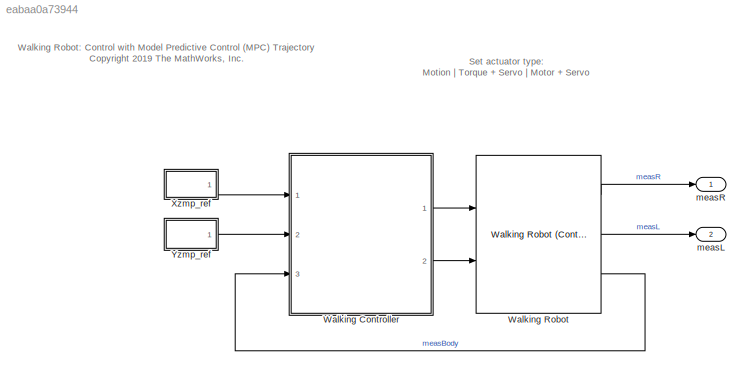
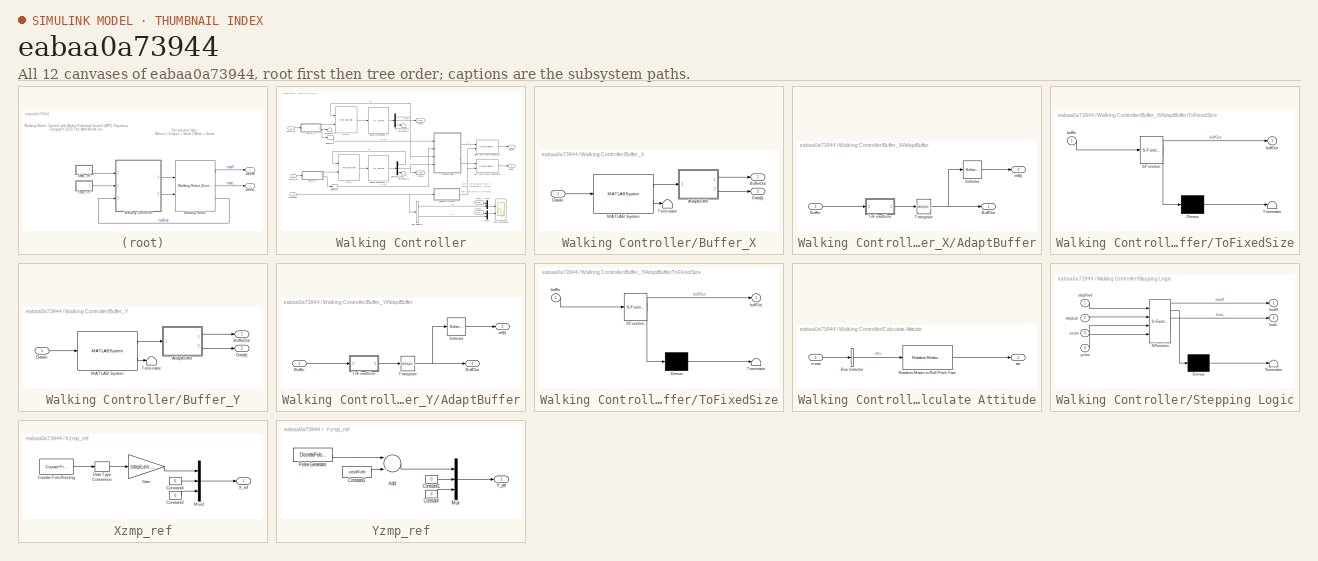
[diagram: thumbnail index - all 12 canvases of the model, root first then tree order]
MODEL slx_eabaa0a73944
KIND model
CONFIG AbsTol = auto
CONFIG EnableMultiTasking = on
CONFIG FixedStep = auto
CONFIG MaxStep = auto
CONFIG MinStep = auto
CONFIG PreLoadFcn = robotParametersCtrl\ndesignMPCWalkingPatternGen\n\n% Define trajectory points for visualization\ninterPts = [0 0 0; 1 0 0];
CONFIG RelTol = 1e-2
CONFIG SampleTimeConstraint = Unconstrained
CONFIG Solver = ode15s
CONFIG SolverName = ode15s
CONFIG StartTime = 0.0
CONFIG StopTime = 15
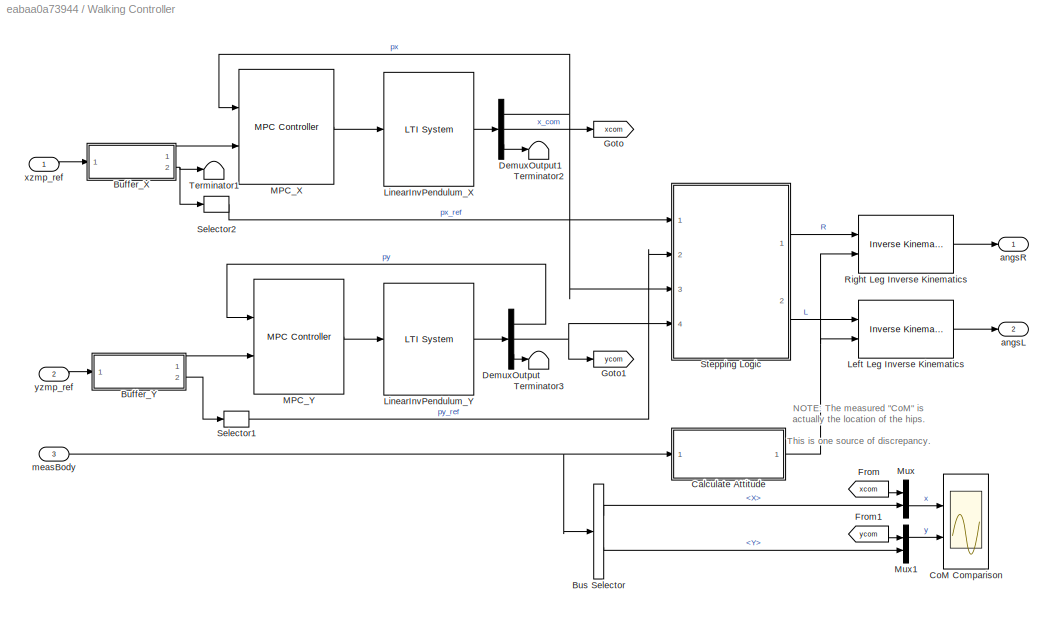
BLOCK [SubSystem] Walking Controller
  Ports = [3, 2]
  RequestExecContextInheritance = off
BLOCK [SubSystem] Walking Controller/Buffer_X
  Ports = [1, 2]
  RequestExecContextInheritance = off
BLOCK [SubSystem] Walking Controller/Buffer_X/AdaptBuffer
  Ports = [1, 2]
  RequestExecContextInheritance = off
BLOCK [Inport] Walking Controller/Buffer_X/AdaptBuffer/BuffIn
  IconDisplay = Port number
BLOCK [Outport] Walking Controller/Buffer_X/AdaptBuffer/BuffOut
  IconDisplay = Port number
BLOCK [Selector] Walking Controller/Buffer_X/AdaptBuffer/Selector
  IndexOptions = Index vector (dialog),Select all
  Indices = [1],1
  InputPortWidth = 3
  NumberOfDimensions = 2
  OutputSizes = 1,1
  Ports = [1, 1]
BLOCK [SubSystem] Walking Controller/Buffer_X/AdaptBuffer/ToFixedSize
  ErrorFcn = Stateflow.Translate.translate
  PermitHierarchicalResolution = ExplicitOnly
  Ports = [1, 1]
  RequestExecContextInheritance = off
  SFBlockType = MATLAB Function
  TreatAsAtomicUnit = on
BLOCK [Demux] Walking Controller/Buffer_X/AdaptBuffer/ToFixedSize/ Demux 
  Outputs = 1
  Ports = [1, 1]
BLOCK [S-Function] Walking Controller/Buffer_X/AdaptBuffer/ToFixedSize/ SFunction 
  EnableBusSupport = off
  FunctionName = sf_sfun
  Parameters = numStates,predictionHorizon
  PortCounts = [1 2]
  Ports = [1, 2]
  SFcnIsStateOwnerBlock = off
  SFunctionDeploymentMode = off
  Tag = Stateflow S-Function 1
BLOCK [Terminator] Walking Controller/Buffer_X/AdaptBuffer/ToFixedSize/ Terminator 
BLOCK [Inport] Walking Controller/Buffer_X/AdaptBuffer/ToFixedSize/buffIn
  IconDisplay = Port number
BLOCK [Outport] Walking Controller/Buffer_X/AdaptBuffer/ToFixedSize/buffOut
  IconDisplay = Port number
BLOCK [Math] Walking Controller/Buffer_X/AdaptBuffer/Transpose
  Operator = transpose
  Ports = [1, 1]
BLOCK [Outport] Walking Controller/Buffer_X/AdaptBuffer/ref(t)
  IconDisplay = Port number
  Port = 2
BLOCK [Outport] Walking Controller/Buffer_X/BufferOut
  IconDisplay = Port number
BLOCK [Outport] Walking Controller/Buffer_X/Data(t)
  IconDisplay = Port number
  Port = 2
BLOCK [Inport] Walking Controller/Buffer_X/DataIn
  IconDisplay = Port number
BLOCK [MATLABSystem] Walking Controller/Buffer_X/MATLAB System
  BufferStartupFillupData = zeros(numOutputs,predictionHorizon)
  Capacity = predictionHorizon
  FillBufferAtStartup = on
  MaskDisplay = disp('FIFOBuffer');\nport_label('input',1,'dataIn');\nport_label('output',1,'buffer');\nport_label('output',2,'isFull');
  MaskType = FIFOBuffer
  NumStates = numOutputs
  Ports = [1, 2]
  SampleTime = Ts
  SimulateUsing = Code generation
  System = FIFOBuffer
BLOCK [Terminator] Walking Controller/Buffer_X/Terminator
BLOCK [SubSystem] Walking Controller/Buffer_Y
  Ports = [1, 2]
  RequestExecContextInheritance = off
BLOCK [SubSystem] Walking Controller/Buffer_Y/AdaptBuffer
  Ports = [1, 2]
  RequestExecContextInheritance = off
BLOCK [Inport] Walking Controller/Buffer_Y/AdaptBuffer/BuffIn
  IconDisplay = Port number
BLOCK [Outport] Walking Controller/Buffer_Y/AdaptBuffer/BuffOut
  IconDisplay = Port number
BLOCK [Selector] Walking Controller/Buffer_Y/AdaptBuffer/Selector
  IndexOptions = Index vector (dialog),Select all
  Indices = [1],1
  InputPortWidth = 3
  NumberOfDimensions = 2
  OutputSizes = 1,1
  Ports = [1, 1]
BLOCK [SubSystem] Walking Controller/Buffer_Y/AdaptBuffer/ToFixedSize
  ErrorFcn = Stateflow.Translate.translate
  PermitHierarchicalResolution = ExplicitOnly
  Ports = [1, 1]
  RequestExecContextInheritance = off
  SFBlockType = MATLAB Function
  TreatAsAtomicUnit = on
BLOCK [Demux] Walking Controller/Buffer_Y/AdaptBuffer/ToFixedSize/ Demux 
  Outputs = 1
  Ports = [1, 1]
BLOCK [S-Function] Walking Controller/Buffer_Y/AdaptBuffer/ToFixedSize/ SFunction 
  EnableBusSupport = off
  FunctionName = sf_sfun
  Parameters = numStates,predictionHorizon
  PortCounts = [1 2]
  Ports = [1, 2]
  SFcnIsStateOwnerBlock = off
  SFunctionDeploymentMode = off
  Tag = Stateflow S-Function 2
BLOCK [Terminator] Walking Controller/Buffer_Y/AdaptBuffer/ToFixedSize/ Terminator 
BLOCK [Inport] Walking Controller/Buffer_Y/AdaptBuffer/ToFixedSize/buffIn
  IconDisplay = Port number
BLOCK [Outport] Walking Controller/Buffer_Y/AdaptBuffer/ToFixedSize/buffOut
  IconDisplay = Port number
BLOCK [Math] Walking Controller/Buffer_Y/AdaptBuffer/Transpose
  Operator = transpose
  Ports = [1, 1]
BLOCK [Outport] Walking Controller/Buffer_Y/AdaptBuffer/ref(t)
  IconDisplay = Port number
  Port = 2
BLOCK [Outport] Walking Controller/Buffer_Y/BufferOut
  IconDisplay = Port number
BLOCK [Outport] Walking Controller/Buffer_Y/Data(t)
  IconDisplay = Port number
  Port = 2
BLOCK [Inport] Walking Controller/Buffer_Y/DataIn
  IconDisplay = Port number
BLOCK [MATLABSystem] Walking Controller/Buffer_Y/MATLAB System
  BufferStartupFillupData = zeros(numOutputs,predictionHorizon)
  Capacity = predictionHorizon
  FillBufferAtStartup = on
  MaskDisplay = disp('FIFOBuffer');\nport_label('input',1,'dataIn');\nport_label('output',1,'buffer');\nport_label('output',2,'isFull');
  MaskType = FIFOBuffer
  NumStates = numOutputs
  Ports = [1, 2]
  SampleTime = Ts
  SimulateUsing = Code generation
  System = FIFOBuffer
BLOCK [Terminator] Walking Controller/Buffer_Y/Terminator
BLOCK [BusSelector] Walking Controller/Bus Selector
  OutputAsBus = off
  OutputSignals = X,Y
  Ports = [1, 2]
BLOCK [SubSystem] Walking Controller/Calculate Attitude
  Ports = [1, 1]
  RequestExecContextInheritance = off
BLOCK [BusSelector] Walking Controller/Calculate Attitude/Bus Selector
  OutputAsBus = off
  OutputSignals = R
  Ports = [1, 1]
BLOCK [Reference] Walking Controller/Calculate Attitude/Rotation Matrix to Roll Pitch Yaw  REF=walkingRobotUtils/Rotation Matrix to 
Roll Pitch Yaw
  Ports = [1, 1]
  SourceBlock = walkingRobotUtils/Rotation Matrix to \nRoll Pitch Yaw
  SourceProductBaseCode = SL
  SourceProductName = Simulink
  SourceType = SubSystem
BLOCK [Outport] Walking Controller/Calculate Attitude/att
  IconDisplay = Port number
BLOCK [Inport] Walking Controller/Calculate Attitude/meas
  IconDisplay = Port number
BLOCK [Scope] Walking Controller/CoM Comparison
  Floating = off
  NumInputPorts = 2
  Ports = [2]
  ScopeSpecificationString = Simulink.scopes.TimeScopeBlockCfg('CurrentConfiguration', extmgr.ConfigurationSet(extmgr.Configuration('Core','General UI',true),extmgr.Configuration('Core','Source UI',true),extmgr.Configuration('Sources','WiredSimulink',true,'DataLoggingVariableName','ScopeData1'),extmgr.Configuration('Visuals','Time Domain',true,'SerializedDisplays',{struct('MinYLimReal','-0.14686','MaxYLimReal','1.28409','YLab...<+2112ch>
BLOCK [Demux] Walking Controller/DemuxOutput
  DisplayOption = bar
  Outputs = 3
  Ports = [1, 3]
BLOCK [Demux] Walking Controller/DemuxOutput1
  DisplayOption = bar
  Outputs = 3
  Ports = [1, 3]
BLOCK [From] Walking Controller/From
  GotoTag = xcom
BLOCK [From] Walking Controller/From1
  GotoTag = ycom
BLOCK [Goto] Walking Controller/Goto
  GotoTag = xcom
BLOCK [Goto] Walking Controller/Goto1
  GotoTag = ycom
BLOCK [Reference] Walking Controller/Left Leg Inverse Kinematics  REF=walkingRobotUtils/Inverse Kinematics
(Control Design)
  Ports = [2, 1]
  SourceBlock = walkingRobotUtils/Inverse Kinematics\n(Control Design)
  SourceType = SubSystem
BLOCK [Reference] Walking Controller/LinearInvPendulum_X  REF=cstblocks/LTI System
  Ports = [1, 1]
  SourceBlock = cstblocks/LTI System
  SourceProductBaseCode = CT
  SourceProductName = Control System Toolbox
  SourceType = LTI Block
BLOCK [Reference] Walking Controller/LinearInvPendulum_Y  REF=cstblocks/LTI System
  Ports = [1, 1]
  SourceBlock = cstblocks/LTI System
  SourceProductBaseCode = CT
  SourceProductName = Control System Toolbox
  SourceType = LTI Block
BLOCK [Reference] Walking Controller/MPC_X  REF=mpclib/MPC Controller  (lib defined in mdl_ae329e0e0455)
  Ports = [2, 1]
  SCDEnableBlockLinearizationSpecification = on
  SourceBlock = mpclib/MPC Controller
  SourceProductBaseCode = MP
  SourceProductName = Model Predictive Control Toolbox
  SourceType = MPC
BLOCK [Reference] Walking Controller/MPC_Y  REF=mpclib/MPC Controller  (lib defined in mdl_ae329e0e0455)
  Ports = [2, 1]
  SCDEnableBlockLinearizationSpecification = on
  SourceBlock = mpclib/MPC Controller
  SourceProductBaseCode = MP
  SourceProductName = Model Predictive Control Toolbox
  SourceType = MPC
BLOCK [Mux] Walking Controller/Mux
  DisplayOption = bar
  Inputs = 2
  Ports = [2, 1]
BLOCK [Mux] Walking Controller/Mux1
  DisplayOption = bar
  Inputs = 2
  Ports = [2, 1]
BLOCK [Reference] Walking Controller/Right Leg Inverse Kinematics  REF=walkingRobotUtils/Inverse Kinematics
(Control Design)
  Ports = [2, 1]
  SourceBlock = walkingRobotUtils/Inverse Kinematics\n(Control Design)
  SourceType = SubSystem
BLOCK [Selector] Walking Controller/Selector1
  IndexOptions = Index vector (dialog)
  Indices = [1]
  InputPortWidth = 3
  OutputSizes = 1
  Ports = [1, 1]
BLOCK [Selector] Walking Controller/Selector2
  IndexOptions = Index vector (dialog)
  Indices = [1]
  InputPortWidth = 3
  OutputSizes = 1
  Ports = [1, 1]
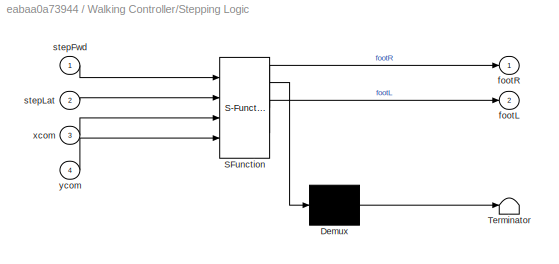
BLOCK [SubSystem] Walking Controller/Stepping Logic
  ErrorFcn = Stateflow.Translate.translate
  PermitHierarchicalResolution = ExplicitOnly
  Ports = [4, 2]
  RequestExecContextInheritance = off
  SFBlockType = Chart
  TreatAsAtomicUnit = on
BLOCK [Demux] Walking Controller/Stepping Logic/ Demux 
  Outputs = 1
  Ports = [1, 1]
BLOCK [S-Function] Walking Controller/Stepping Logic/ SFunction 
  EnableBusSupport = off
  FunctionName = sf_sfun
  Parameters = h,stepTime,torso_y
  PortCounts = [4 3]
  Ports = [4, 3]
  SFcnIsStateOwnerBlock = off
  SFunctionDeploymentMode = off
  Tag = Stateflow S-Function 3
BLOCK [Terminator] Walking Controller/Stepping Logic/ Terminator 
BLOCK [Outport] Walking Controller/Stepping Logic/footL
  IconDisplay = Port number
  Port = 2
BLOCK [Outport] Walking Controller/Stepping Logic/footR
  IconDisplay = Port number
BLOCK [Inport] Walking Controller/Stepping Logic/stepFwd
  IconDisplay = Port number
BLOCK [Inport] Walking Controller/Stepping Logic/stepLat
  IconDisplay = Port number
  Port = 2
BLOCK [Inport] Walking Controller/Stepping Logic/xcom
  IconDisplay = Port number
  Port = 3
BLOCK [Inport] Walking Controller/Stepping Logic/ycom
  IconDisplay = Port number
  Port = 4
BLOCK [Terminator] Walking Controller/Terminator1
BLOCK [Terminator] Walking Controller/Terminator2
BLOCK [Terminator] Walking Controller/Terminator3
BLOCK [Outport] Walking Controller/angsL
  IconDisplay = Port number
  Port = 2
BLOCK [Outport] Walking Controller/angsR
  IconDisplay = Port number
BLOCK [Inport] Walking Controller/measBody
  IconDisplay = Port number
  Port = 3
BLOCK [Inport] Walking Controller/xzmp_ref
  IconDisplay = Port number
BLOCK [Inport] Walking Controller/yzmp_ref
  IconDisplay = Port number
  Port = 2
BLOCK [Reference] Walking Robot  REF=walkingRobotUtils/Walking Robot
(Control Design)
  Ports = [2, 3]
  SourceBlock = walkingRobotUtils/Walking Robot\n(Control Design)
  SourceType = SubSystem
BLOCK [SubSystem] Xzmp_ref
  Ports = [0, 1]
  RequestExecContextInheritance = off
BLOCK [Constant] Xzmp_ref/Constant3
  SampleTime = Ts
  Value = 0
BLOCK [Constant] Xzmp_ref/Constant4
  SampleTime = Ts
  Value = 0
BLOCK [Reference] Xzmp_ref/Counter Free-Running  REF=simulink/Sources/Counter
Free-Running
  Ports = [0, 1]
  SourceBlock = simulink/Sources/Counter\nFree-Running
  SourceProductBaseCode = SL
  SourceProductName = Simulink
  SourceType = Counter Free-Running
BLOCK [DataTypeConversion] Xzmp_ref/Data Type Conversion
  OutDataTypeStr = double
  RndMeth = Floor
  SaturateOnIntegerOverflow = off
BLOCK [Gain] Xzmp_ref/Gain
  Gain = stepLength
  OutDataTypeStr = Inherit: Inherit via internal rule
  ParamDataTypeStr = Inherit: Inherit via internal rule
  SaturateOnIntegerOverflow = off
BLOCK [Mux] Xzmp_ref/Mux2
  DisplayOption = bar
  Inputs = 3
  Ports = [3, 1]
BLOCK [Outport] Xzmp_ref/X_ref
  IconDisplay = Port number
BLOCK [SubSystem] Yzmp_ref
  Ports = [0, 1]
  RequestExecContextInheritance = off
BLOCK [Sum] Yzmp_ref/Add
  InputSameDT = off
  Inputs = +-
  OutDataTypeStr = Inherit: Inherit via internal rule
  Ports = [2, 1]
  SaturateOnIntegerOverflow = off
BLOCK [Constant] Yzmp_ref/Constant
  SampleTime = Ts
  Value = 0
BLOCK [Constant] Yzmp_ref/Constant1
  SampleTime = Ts
  Value = 0
BLOCK [Constant] Yzmp_ref/Constant2
  SampleTime = Ts
  Value = stepWidth
BLOCK [Mux] Yzmp_ref/Mux
  DisplayOption = bar
  Inputs = 3
  Ports = [3, 1]
BLOCK [DiscretePulseGenerator] Yzmp_ref/Pulse Generator
  Amplitude = 2*stepWidth
  Period = 2*stepTime
  Ports = [0, 1]
  PulseType = Time based
  PulseWidth = 50
BLOCK [Outport] Yzmp_ref/Y_ref
  IconDisplay = Port number
BLOCK [Outport] measL
  IconDisplay = Port number
  Port = 2
BLOCK [Outport] measR
  IconDisplay = Port number
ANNOTATION (root): Set actuator type: Motion | Torque + Servo | Motor + Servo
ANNOTATION (root): Walking Robot: Control with Model Predictive Control (MPC) Trajectory <copyright redacted>
ANNOTATION Walking Controller: NOTE: The measured "CoM" is actually the location of the hips. This is one source of discrepancy.
LINE Walking Controller/Buffer_X/AdaptBuffer/BuffIn:1 -> Walking Controller/Buffer_X/AdaptBuffer/ToFixedSize:1
LINE Walking Controller/Buffer_X/AdaptBuffer/Selector:1 -> Walking Controller/Buffer_X/AdaptBuffer/ref(t):1
LINE Walking Controller/Buffer_X/AdaptBuffer/ToFixedSize:1 -> Walking Controller/Buffer_X/AdaptBuffer/Transpose:1
NET Walking Controller/Buffer_X/AdaptBuffer/Transpose:1 -> Walking Controller/Buffer_X/AdaptBuffer/BuffOut:1, Walking Controller/Buffer_X/AdaptBuffer/Selector:1
LINE Walking Controller/Buffer_X/AdaptBuffer:1 -> Walking Controller/Buffer_X/BufferOut:1
LINE Walking Controller/Buffer_X/AdaptBuffer:2 -> Walking Controller/Buffer_X/Data(t):1
LINE Walking Controller/Buffer_X/DataIn:1 -> Walking Controller/Buffer_X/MATLAB System:1
LINE Walking Controller/Buffer_X/MATLAB System:1 -> Walking Controller/Buffer_X/AdaptBuffer:1
LINE Walking Controller/Buffer_X/MATLAB System:2 -> Walking Controller/Buffer_X/Terminator:1
LINE Walking Controller/Buffer_X:1 -> Walking Controller/MPC_X:2
NET Walking Controller/Buffer_X:2 -> Walking Controller/Selector2:1, Walking Controller/Terminator1:1
LINE Walking Controller/Buffer_Y/AdaptBuffer/BuffIn:1 -> Walking Controller/Buffer_Y/AdaptBuffer/ToFixedSize:1
LINE Walking Controller/Buffer_Y/AdaptBuffer/Selector:1 -> Walking Controller/Buffer_Y/AdaptBuffer/ref(t):1
LINE Walking Controller/Buffer_Y/AdaptBuffer/ToFixedSize:1 -> Walking Controller/Buffer_Y/AdaptBuffer/Transpose:1
NET Walking Controller/Buffer_Y/AdaptBuffer/Transpose:1 -> Walking Controller/Buffer_Y/AdaptBuffer/BuffOut:1, Walking Controller/Buffer_Y/AdaptBuffer/Selector:1
LINE Walking Controller/Buffer_Y/AdaptBuffer:1 -> Walking Controller/Buffer_Y/BufferOut:1
LINE Walking Controller/Buffer_Y/AdaptBuffer:2 -> Walking Controller/Buffer_Y/Data(t):1
LINE Walking Controller/Buffer_Y/DataIn:1 -> Walking Controller/Buffer_Y/MATLAB System:1
LINE Walking Controller/Buffer_Y/MATLAB System:1 -> Walking Controller/Buffer_Y/AdaptBuffer:1
LINE Walking Controller/Buffer_Y/MATLAB System:2 -> Walking Controller/Buffer_Y/Terminator:1
LINE Walking Controller/Buffer_Y:1 -> Walking Controller/MPC_Y:2
LINE Walking Controller/Buffer_Y:2 -> Walking Controller/Selector1:1
LINE Walking Controller/Bus Selector:1 -> Walking Controller/Mux:2
LINE Walking Controller/Bus Selector:2 -> Walking Controller/Mux1:2
LINE Walking Controller/Calculate Attitude/Bus Selector:1 -> Walking Controller/Calculate Attitude/Rotation Matrix to Roll Pitch Yaw:1
LINE Walking Controller/Calculate Attitude/Rotation Matrix to Roll Pitch Yaw:1 -> Walking Controller/Calculate Attitude/att:1
LINE Walking Controller/Calculate Attitude/meas:1 -> Walking Controller/Calculate Attitude/Bus Selector:1
NET Walking Controller/Calculate Attitude:1 -> Walking Controller/Left Leg Inverse Kinematics:2, Walking Controller/Right Leg Inverse Kinematics:2
NET Walking Controller/DemuxOutput1:1 -> Walking Controller/MPC_X:1, Walking Controller/Stepping Logic:3
LINE Walking Controller/DemuxOutput1:2 -> Walking Controller/Goto:1
LINE Walking Controller/DemuxOutput1:3 -> Walking Controller/Terminator2:1
LINE Walking Controller/DemuxOutput:1 -> Walking Controller/MPC_Y:1
NET Walking Controller/DemuxOutput:2 -> Walking Controller/Goto1:1, Walking Controller/Stepping Logic:4
LINE Walking Controller/DemuxOutput:3 -> Walking Controller/Terminator3:1
LINE Walking Controller/From1:1 -> Walking Controller/Mux1:1
LINE Walking Controller/From:1 -> Walking Controller/Mux:1
LINE Walking Controller/Left Leg Inverse Kinematics:1 -> Walking Controller/angsL:1
LINE Walking Controller/LinearInvPendulum_X:1 -> Walking Controller/DemuxOutput1:1
LINE Walking Controller/LinearInvPendulum_Y:1 -> Walking Controller/DemuxOutput:1
LINE Walking Controller/MPC_X:1 -> Walking Controller/LinearInvPendulum_X:1
LINE Walking Controller/MPC_Y:1 -> Walking Controller/LinearInvPendulum_Y:1
LINE Walking Controller/Mux1:1 -> Walking Controller/CoM Comparison:2
LINE Walking Controller/Mux:1 -> Walking Controller/CoM Comparison:1
LINE Walking Controller/Right Leg Inverse Kinematics:1 -> Walking Controller/angsR:1
LINE Walking Controller/Selector1:1 -> Walking Controller/Stepping Logic:2
LINE Walking Controller/Selector2:1 -> Walking Controller/Stepping Logic:1
LINE Walking Controller/Stepping Logic:1 -> Walking Controller/Right Leg Inverse Kinematics:1
LINE Walking Controller/Stepping Logic:2 -> Walking Controller/Left Leg Inverse Kinematics:1
NET Walking Controller/measBody:1 -> Walking Controller/Bus Selector:1, Walking Controller/Calculate Attitude:1
LINE Walking Controller/xzmp_ref:1 -> Walking Controller/Buffer_X:1
LINE Walking Controller/yzmp_ref:1 -> Walking Controller/Buffer_Y:1
LINE Walking Controller:1 -> Walking Robot:1
LINE Walking Controller:2 -> Walking Robot:2
LINE Walking Robot:1 -> measR:1
LINE Walking Robot:2 -> measL:1
LINE Walking Robot:3 -> Walking Controller:3
LINE Xzmp_ref/Constant3:1 -> Xzmp_ref/Mux2:3
LINE Xzmp_ref/Constant4:1 -> Xzmp_ref/Mux2:2
LINE Xzmp_ref/Counter Free-Running:1 -> Xzmp_ref/Data Type Conversion:1
LINE Xzmp_ref/Data Type Conversion:1 -> Xzmp_ref/Gain:1
LINE Xzmp_ref/Gain:1 -> Xzmp_ref/Mux2:1
LINE Xzmp_ref/Mux2:1 -> Xzmp_ref/X_ref:1
LINE Xzmp_ref:1 -> Walking Controller:1
LINE Yzmp_ref/Add:1 -> Yzmp_ref/Mux:1
LINE Yzmp_ref/Constant1:1 -> Yzmp_ref/Mux:2
LINE Yzmp_ref/Constant2:1 -> Yzmp_ref/Add:2
LINE Yzmp_ref/Constant:1 -> Yzmp_ref/Mux:3
LINE Yzmp_ref/Mux:1 -> Yzmp_ref/Y_ref:1
LINE Yzmp_ref/Pulse Generator:1 -> Yzmp_ref/Add:1
LINE Yzmp_ref:1 -> Walking Controller:2
note: NET lines group one-source signal fan-out (src -> all destinations, sorted); 1:1 wires keep LINE
CHART Walking Controller/Buffer_X/AdaptBuffer/ToFixedSize states=1 transitions=1
  STATE_LABEL 'eML_blk_kernel()'
  STATE_LABEL 'SCRIPT:\nfunction buffOut = fcn(buffIn,predictionHorizon, numStates)\n\nbuffOut = buffIn(1:numStates,1:predictionHorizon);\n'
CHART Walking Controller/Buffer_Y/AdaptBuffer/ToFixedSize states=1 transitions=1
  STATE_LABEL 'eML_blk_kernel()'
  STATE_LABEL 'SCRIPT:\nfunction buffOut = fcn(buffIn,predictionHorizon, numStates)\n\nbuffOut = buffIn(1:numStates,1:predictionHorizon);\n'
CHART Walking Controller/Stepping Logic states=8 transitions=6
  STATE_LABEL 'control'
  STATE_LABEL '{\nxR = xR + Kwalk*(xrefR-xR);\nyR = yR + Kwalk*(yrefR-yR);\nzR = zR + Kwalk*(zrefR-zR);\nxL = xL + Kwalk*(xrefL-xL);\nyL = yL + Kwalk*(yrefL-yL);\nzL = zL + Kwalk*(zrefL-zL);\nfootR = [xR;yR;zR];\nfootL = [xL;yL;zL];\n}'
  STATE_LABEL 'Wait\nen,du:\ncontrol;'
  STATE_LABEL 'RightStep\n% Right foot is active\n% Left foot drags\nen, du:\ncontrol;\n'
  STATE_LABEL 'RightFoot\nen,du:\nzrefL = low;\nxrefR = stepFwd - xcom;\nyrefR = min(0,stepLat-(ycom-del));\non after(0.05*stepTime,sec):\nzrefR = high;\non after(0.95*stepTime,sec):\nzrefR = low;'
  STATE_LABEL 'LeftFoot\nen:\nrefsnap = [xrefL+xcom ...\n    yrefL+ycom];\nen, du:\nxrefL = refsnap(1) - xcom;\nyrefL = max(0,refsnap(2) - ycom);'
  STATE_LABEL 'RightFoot\nen,du:\nzrefL = low;\nxrefR = stepFwd - xcom;\nyrefR = min(0,stepLat-(ycom-del));\non after(0.05*stepTime,sec):\nzrefR = high;\non after(0.95*stepTime,sec):\nzrefR = low;'
  STATE_LABEL 'LeftFoot\nen:\nrefsnap = [xrefL+xcom ...\n    yrefL+ycom];\nen, du:\nxrefL = refsnap(1) - xcom;\nyrefL = max(0,refsnap(2) - ycom);'
  STATE_LABEL 'LeftStep\n% Left foot is active\n% Right foot drags\nen,du:\ncontrol;'
  STATE_LABEL 'RightFoot\nen:\nrefsnap = [xrefR+xcom ...\n    yrefR+ycom];\nen, du:\nxrefR = refsnap(1) - xcom;\nyrefR = min(0,refsnap(2) - ycom);'
  STATE_LABEL 'LeftFoot\nen,du:\nzrefR = low;\nxrefL = stepFwd - xcom;\nyrefL =  max(0,stepLat-(ycom+del));\non after(0.05*stepTime,sec):\nzrefL = high;\non after(0.95*stepTime,sec):\nzrefL = low;'
  STATE_LABEL 'RightFoot\nen:\nrefsnap = [xrefR+xcom ...\n    yrefR+ycom];\nen, du:\nxrefR = refsnap(1) - xcom;\nyrefR = min(0,refsnap(2) - ycom);'
  STATE_LABEL 'LeftFoot\nen,du:\nzrefR = low;\nxrefL = stepFwd - xcom;\nyrefL =  max(0,stepLat-(ycom+del));\non after(0.05*stepTime,sec):\nzrefL = high;\non after(0.95*stepTime,sec):\nzrefL = low;'
